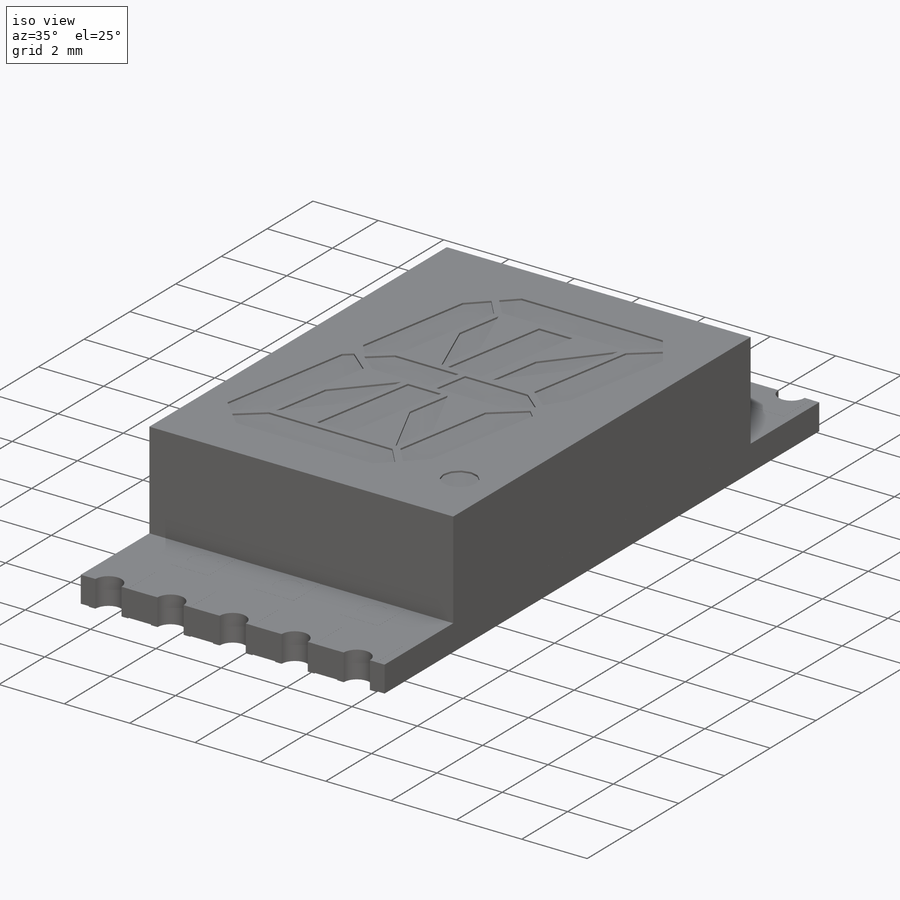
[diagram: iso view]
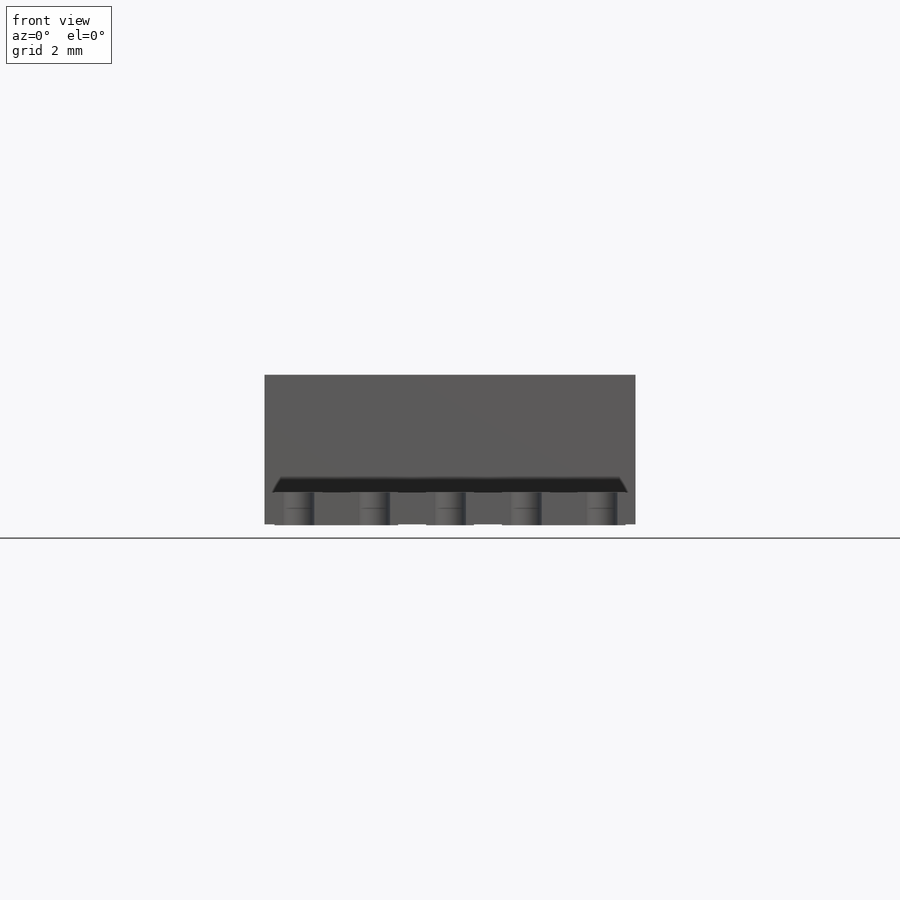
[diagram: front view]
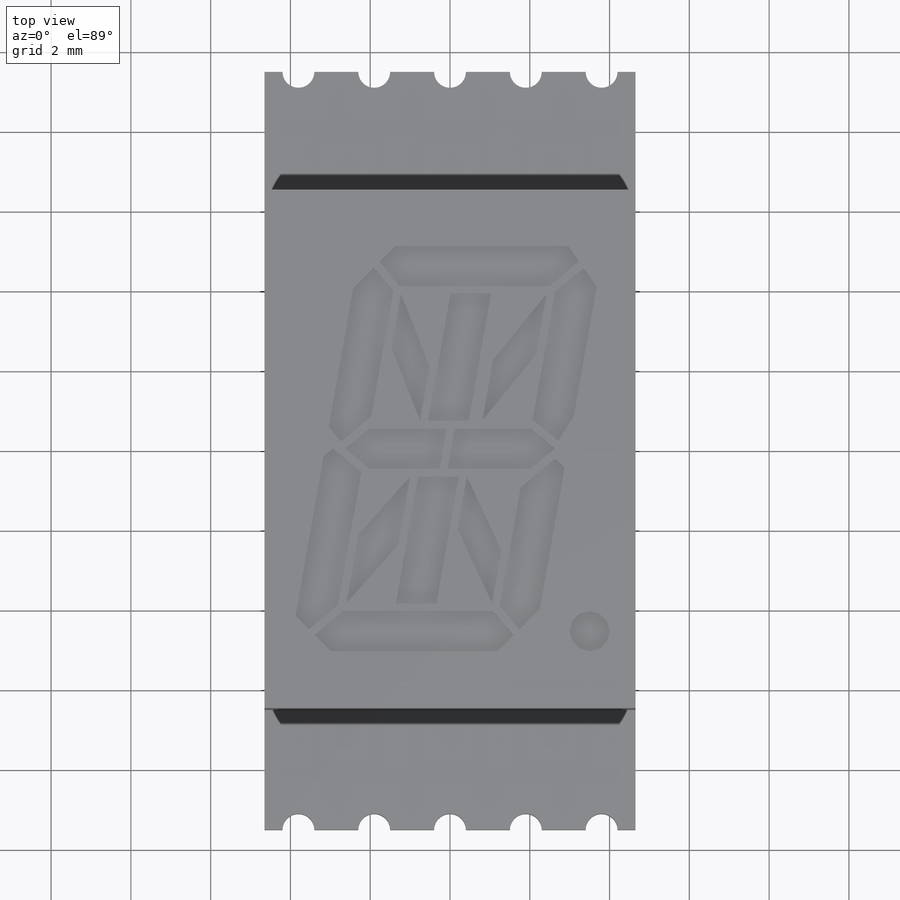
[diagram: top view]
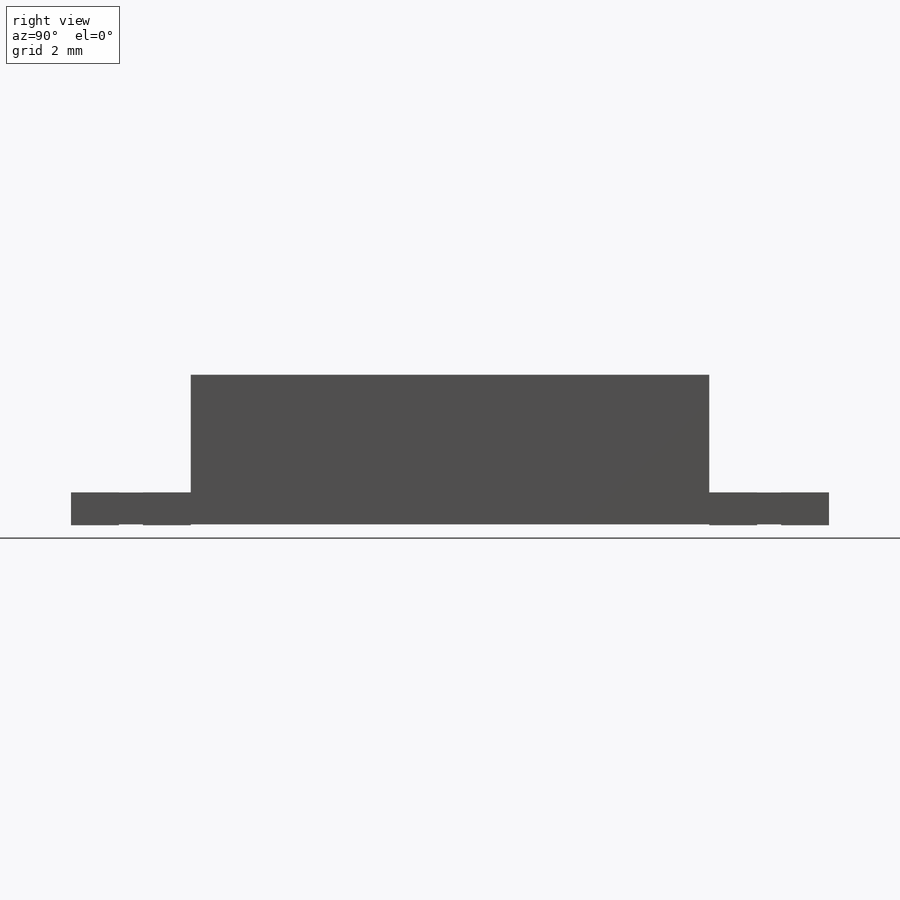
[diagram: right view]
SOLIDWORKS PART (.sldprt)
format: sldprt  version: not decoded by parser v0  size: 1,381,376 bytes
history: native  units: mm
features: sketch x6, extrude x4, cut_extrude x2, material x1 (+11 scaffold rows collapsed)
feature tree (24):
  scaffold x11  (default folders/planes/origin — collapsed)
  material  "Material <not specified>"
  sketch  "Sketch1"  dims[c1.D12=1.15mm c1.D13=1.15mm c1.D7=1.15mm c1.D26=1.15mm c1.D37=1.5mm c1.D38=1.5mm c1.D5=1.68mm c1.D1=9.3mm c1.D2=13.0mm c1.D3=~14.906379mm c2.D3=8.0deg c2.D4=1.2924mm c3.D4=45.0deg c3.D5=~1.596494mm c4.D5=45.0deg c4.D6=1.5mm c4.D7=1.5mm c4.D8=1.5mm c4.D9=7.0mm c4.D10=4.5mm c4.D11=0.35mm c4.D4=~6.355052mm c5.D4=172.0deg c6.D4=~6.355052mm c7.D4=8.0deg c8.D4=4.0mm c8.D12=~6.154425mm c9.D12=~179.326706deg c9.D13=1.5mm c9.D14=1.5mm c9.D15=~1.06066mm c10.D15=~128.822723deg c11.D15=~1.06066mm c12.D15=45.0deg c12.D16=~1.06066mm c13.D16=45.0deg c13.D17=~2.693844mm c13.D18=~1.514741mm c14.D18=~178.236006deg c15.D18=~1.514741mm c16.D18=~178.236006deg c17.D18=0.35mm c17.D19=0.35mm c17.D20=0.35mm c17.D21=~6.311422mm c18.D21=8.0deg c18.D22=~13.575236mm c19.D22=8.0deg c20.D22=7.0mm c20.D23=0.35mm c20.D24=0.35mm c20.D25=0.35mm c20.D26=~5.762537mm c20.D27=4.5mm c20.D28=1.5mm c20.D29=~0.659336mm c20.D30=1.5mm c20.D31=1.5mm c20.D32=~6.250447mm c21.D32=8.0deg c21.D33=~6.250447mm c22.D33=8.0deg c22.D19=~1.06066mm c23.D19=45.0deg c23.D20=14.2mm c24.D19=~1.06066mm c25.D19=45.0deg c25.D23=~0.902723mm c26.D23=45.0deg c26.D24=6.3mm c26.D32=~6.372012mm c27.D24=6.3mm c27.D32=~23.905918mm c28.D32=~73.284594deg c29.D32=~28.753235mm c30.D32=8.0deg c30.D33=~23.905918mm c31.D33=8.0deg c31.D34=14.2mm c31.D35=~8.027722mm c31.D39=1.5mm c31.D40=~0.731782mm c32.D40=45.0deg c32.D41=~0.788192mm c33.D41=45.0deg c33.D42=0.35mm c33.D43=5.6mm c33.D44=5.25mm c34.D42=~2.629975mm c34.D40=2.2083mm c35.D40=45.0deg c35.D41=~2.648023mm c36.D41=45.0deg c36.D44=~4.409923mm c37.D44=45.0deg c37.D45=~3.879483mm c38.D45=45.0deg c38.D46=0.5mm c38.D47=~1.403673mm c39.D47=45.0deg c39.D48=~1.585874mm c40.D48=45.0deg c40.D49=~1.410408mm c41.D49=45.0deg c41.D50=~1.06066mm c42.D50=45.0deg c43.D50=~1.06066mm c44.D50=45.0deg c44.D51=5.0mm c44.D52=5.0mm c44.D45=~0.83082mm c45.D45=45.0deg c45.D53=~0.626068mm c46.D53=53.0deg c47.D53=~0.626068mm c47.D44=~1.067694mm c48.D44=45.0deg c48.D53=~1.06066mm c49.D53=8.0deg c50.D53=5.0mm c50.D54=~1.06066mm c51.D54=45.0deg c52.D54=~1.067694mm c53.D54=98.0deg c54.D54=~5.906456mm c54.D41=~0.83082mm c55.D41=45.0deg c55.D54=~0.626068mm c56.D54=53.0deg c56.D40=~0.626068mm c57.D40=45.0deg c57.D54=~0.604863mm c57.D51=~5.74523mm c57.D52=~0.386715mm c58.D54=0.35mm c58.D55=0.35mm c58.D56=~4.36529mm c58.D57=~6.574057mm c58.D58=4.0mm c58.D59=7.0mm c58.D60=0.75mm c59.D59=5.5mm c59.D60=0.35mm c59.D61=0.35mm c59.D7=1.5mm c59.D8=1.5mm c59.D9=8.0mm c59.D10=14.2mm c59.D11=~5.047521mm c60.D11=~0.008994deg c61.D11=~4.696155mm c61.D12=4.0mm c62.D12=~179.99239deg c63.D12=~5.047521mm c64.D12=~180.00761deg c65.D12=4.0mm c66.D12=~179.99239deg c67.D12=~5.047521mm c68.D12=~179.99239deg c68.D11=7.1mm c69.D12=7.1mm c69.D11=1.5mm c70.D12=~1.085012mm c71.D12=45.0deg c71.D13=~0.707349mm c72.D13=45.0deg c72.D14=~0.83082mm c73.D14=45.0deg c73.D15=~0.707107mm c74.D15=45.0deg c74.D16=~1.06066mm c75.D16=45.0deg c75.D17=~1.06066mm c76.D17=45.0deg c76.D18=~1.06066mm c77.D18=45.0deg c77.D19=4.0mm c77.D20=5.5mm c77.D21=~0.374138mm c77.D22=~5.048057mm c78.D22=~0.040127deg c79.D22=~5.047521mm c80.D22=~0.008994deg c81.D22=~1.499708mm c81.D23=4.0mm c82.D23=~0.036768deg c82.D24=~5.047521mm c83.D24=~0.008994deg c84.D24=~3.999999mm c84.D25=4.0mm c85.D25=~0.036768deg c85.D23=1.5mm c86.D25=~6.891237mm c86.D26=~0.947295mm c87.D26=~0.024033deg c88.D26=~1.879854mm c88.D7=~5.049131mm c89.D7=~179.990601deg c89.D8=14.2mm c90.D8=8.0deg c90.D11=~11.310067mm c91.D11=8.0deg c92.D11=1.5mm c92.D12=0.3mm c92.D13=0.3mm c92.D14=~1.389307mm c93.D14=45.0deg c93.D15=~1.062746mm c94.D15=45.0deg c94.D16=~1.703661mm c95.D16=~116.118505deg c95.D17=~1.703661mm c96.D17=45.0deg c96.D18=~1.703661mm c97.D18=~63.881495deg c98.D18=~1.703661mm c99.D18=~63.881495deg c100.D18=~1.060659mm c100.D16=~1.060659mm c101.D16=45.0deg c102.D16=~1.703661mm c103.D16=45.0deg c103.D18=1.0mm c103.D19=1.0mm c103.D23=0.3mm c103.D3=12.5mm c103.D4=12.5mm c103.D6=0.3mm c104.D23=~3.05945mm c104.D24=3.6mm c104.D25=3.6mm c104.D26=0.3mm c104.D27=0.3mm c104.D28=0.3mm c104.D29=0.3mm c104.D30=0.3mm c104.D31=~11.310067mm c105.D31=307.0deg c106.D31=~5.049137mm c106.D4=14.2mm c107.D4=8.0deg c107.D6=~0.940002mm c108.D6=307.0deg c109.D6=0.3mm c109.D24=12.7mm c109.D28=~5.049137mm c109.D23=0.3mm c109.D25=0.3mm c109.D3=1.78mm c109.D4=1.78mm c109.D36=1.5mm c109.D42=0.5mm c109.D43=0.5mm c109.D46=0.5mm c109.D47=0.5mm c109.D7=1.5mm c109.D20=0.3mm c109.D21=0.35mm c109.D22=0.3mm c110.D21=0.6mm]
  extrude  "Extrude2"  Depth=2.95mm
  sketch  "Sketch6"  dims[c1.D32=1.0mm c1.D35=2.0mm c1.D1=6.0mm c1.D2=10.16mm c1.D3=~20.352615mm c2.D3=10.0deg c2.D6=~5.613747mm c3.D6=130.0deg c3.D8=~6.319467mm c4.D8=140.0deg c4.D9=0.3mm c4.D10=0.1mm c4.D11=~6.319467mm c5.D11=80.0deg c5.D12=~2.004701mm c6.D12=80.0deg c6.D13=~2.055572mm c7.D12=~1.848608mm c8.D12=80.0deg c8.D13=~9.234632mm c9.D13=10.0deg c9.D14=1.0mm c9.D15=0.3mm c9.D16=~0.303365mm c9.D17=5.25mm c9.D18=0.3mm c9.D19=0.3mm c10.D16=0.3mm c10.D20=~1.962991mm c11.D16=~1.167506mm c11.D20=0.3mm c11.D21=0.3mm c11.D22=0.2mm c11.D23=0.2mm c11.D24=~1.844103mm c12.D24=35.0deg c12.D25=1.25mm c12.D26=1.0mm c13.D26=45.0deg c13.D27=~1.684387mm c14.D27=45.0deg c14.D28=1.25mm c14.D29=1.5mm c14.D30=1.25mm c15.D30=45.0deg c15.D31=1.5mm c15.D33=0.3mm c15.D34=3.4mm c15.D35=2.75mm c15.D11=0.3mm c15.D9=0.2mm c15.D10=0.2mm c16.D11=0.2mm c16.D15=0.2mm c16.D16=3.4mm c16.D18=10.6mm c17.D16=1.78mm c17.D18=1.78mm c17.D19=~1.863108mm c17.D20=1.0mm c17.D21=~0.860079mm c18.D21=40.0deg c18.D33=40.0deg c19.D21=40.0deg c19.D33=40.0deg c20.D21=80.0deg c20.D33=~141.409591deg c21.D21=~141.409591deg c21.D33=~141.409591deg c22.D21=~141.409591deg c22.D33=~141.409591deg c23.D21=~141.409591deg c23.D33=~141.409591deg c24.D21=~141.409591deg c24.D33=80.0deg c25.D21=40.0deg c25.D33=40.0deg c26.D21=40.0deg c26.D33=100.0deg c27.D21=100.0deg c27.D33=100.0deg c28.D21=100.0deg c28.D33=100.0deg c29.D21=100.0deg c29.D33=100.0deg c30.D21=100.0deg c30.D33=100.0deg c31.D21=100.0deg c31.D33=100.0deg c32.D21=100.0deg c32.D33=100.0deg c33.D21=100.0deg c33.D13=80.0deg c34.D21=0.2mm c34.D33=0.2mm c34.D34=~0.691826mm c35.D34=10.0deg c36.D34=~1.56112mm c37.D34=0.75deg c37.D35=0.2mm c37.D36=0.2mm c37.D37=0.2mm c37.D38=0.2mm c37.D39=1.0mm c37.D40=~1.699273mm c38.D40=~1.624106deg c39.D40=~1.699273mm c40.D40=~178.375894deg c41.D40=0.2mm c41.D41=0.2mm c41.D42=1.0mm c41.D43=~2.273555mm c42.D43=~179.561331deg c42.D40=~2.750231mm c43.D40=~37.221795deg c43.D41=~2.141332mm c44.D41=37.0deg c45.D41=0.2mm c45.D42=0.2mm c45.D43=0.2mm c45.D44=0.753mm c45.D34=0.2mm c45.D45=0.2mm c45.D46=0.2mm c45.D47=0.2mm c45.D48=0.2mm c45.D49=0.2mm c45.D50=0.2mm c45.D51=0.2mm c45.D52=1.0mm c45.D53=0.2mm c46.D52=0.1mm c46.D53=0.1mm c46.D16=~1.224292mm c46.D18=~1.707148mm c47.D16=~1.424292mm c47.D18=3.5mm c47.D19=0.2mm c47.D33=80.0deg c47.D21=0.2mm c48.D33=0.2mm c48.D40=0.2mm c48.D52=0.2mm c48.D4=1.0mm c48.D5=0.2mm c48.D7=0.2mm c48.D10=0.3mm]
  cut_extrude  "Cut-Extrude4"  Depth=0.05mm
  sketch  "Sketch7"  dims[c1.D1=0.5mm c1.D2=10.16mm c1.D3=2.54mm c1.D4=2.54mm c1.D5=2.54mm c1.D6=2.54mm c1.D7=0.3mm c1.D8=0.3mm c2.D2=2.54mm c2.D9=2.54mm c2.D10=2.54mm c2.D11=15.243mm c2.D1=2.54mm c3.D2=2.54mm c3.D3=2.54mm c3.D4=2.54mm c3.D5=0.5mm c3.D6=0.25mm c3.D9=15.24mm c3.D1=~0.668968mm c4.D1=90.0deg c5.D1=2.54mm c5.D2=2.543mm c5.D3=2.54mm c5.D4=2.54mm c5.D5=2.54mm c5.D6=254.0mm c5.D7=2.54mm c5.D8=7.5mm c5.D9=0.25mm c5.D10=0.5mm c6.D1=19.0mm]
  extrude  "Extrude3"  Depth=0.8mm
  sketch  "Sketch8"  dims[D3=0.8mm D8=0.8mm D1=1.2mm D2=1.2mm D4=1.9mm D5=1.9mm D6=1.9mm D7=1.9mm D9=1.2mm D10=1.2mm D11=2.6mm D12=2.6mm D13=5.2mm]
  sketch  "Sketch9"
  extrude  "Extrude4"  Depth=0.002mm
  extrude  "Extrude5"  Depth=0.02mm
  cut_extrude  "Cut-Extrude6"  [1 undecoded]
  sketch  "Sketch8<4>"
decode coverage: 9 of 12 modeling features carry decoded parameters
note: ~ marks probable driven/reference dimensions
note: 1 parameter value undecoded
note: suppression state not decoded; provenance and decode notes live in map.json
